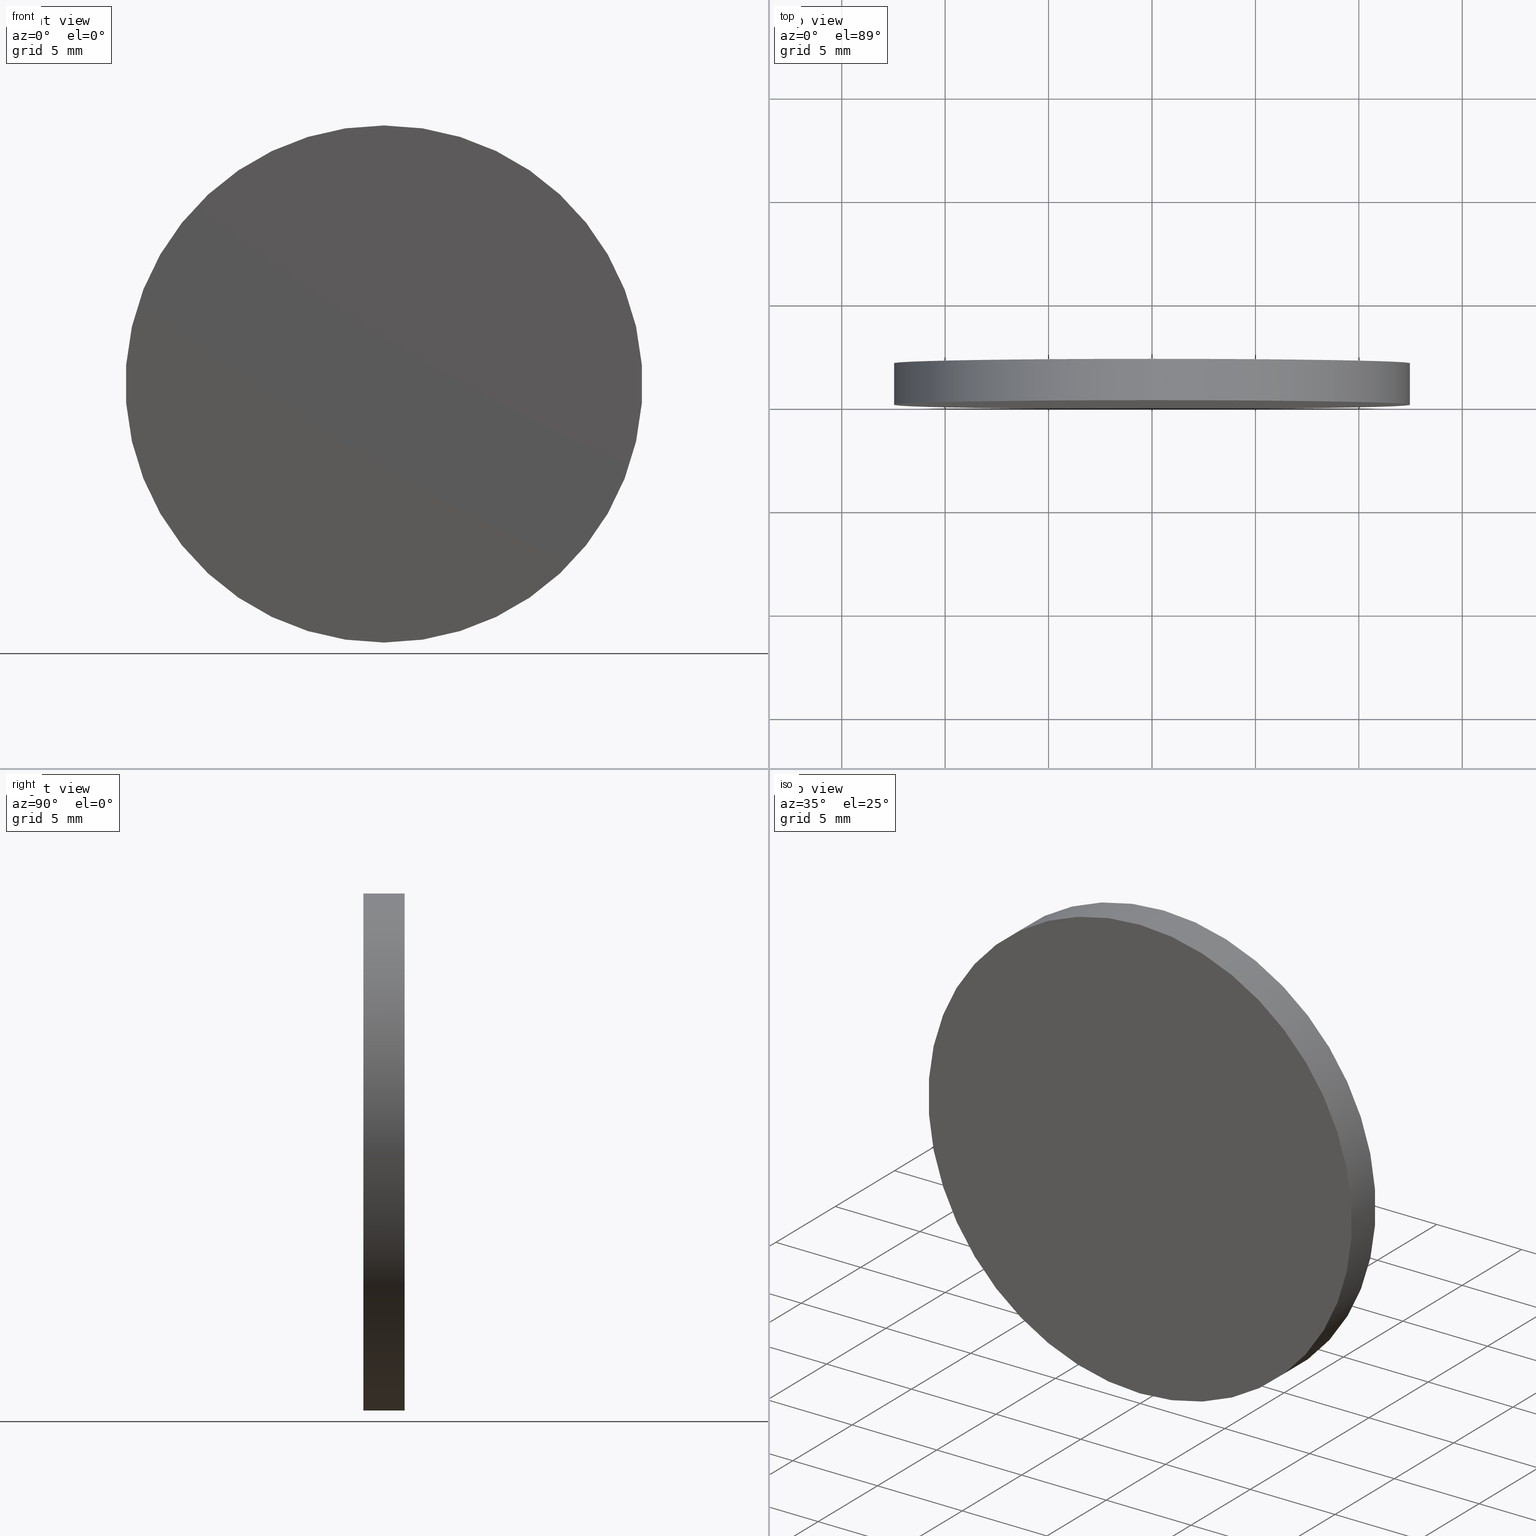
[diagram: canonical four-view strip — front | top / right | iso, engineering-drawing reading convention]
A machine part, canonical four-view strip (front | top / right | iso — engineering-drawing reading convention). The complete STEP part file that produces these views, byte-faithful:
ISO-10303-21;
HEADER;
FILE_DESCRIPTION (( 'STEP AP214' ),
    '1' );
FILE_NAME ('218529.STEP',
    '2019-07-29T06:09:33',
    ( 'user' ),
    ( '΢���й�' ),
    'SwSTEP 2.0',
    'SolidWorks 2016',
    '' );
FILE_SCHEMA (( 'AUTOMOTIVE_DESIGN' ));
ENDSEC;

DATA;
#1 = UNCERTAINTY_MEASURE_WITH_UNIT (LENGTH_MEASURE( 1.000000000000000100E-005 ), #90, 'distance_accuracy_value', 'NONE');
#2 = ORIENTED_EDGE ( 'NONE', *, *, #61, .F. ) ;
#3 = DIRECTION ( 'NONE',  ( -0.0000000000000000000, -1.000000000000000000, -0.0000000000000000000 ) ) ;
#4 = CARTESIAN_POINT ( 'NONE',  ( 0.0000000000000000000, 2.000000000000000000, -12.50000000000000000 ) ) ;
#5 = DIRECTION ( 'NONE',  ( 0.0000000000000000000, 0.0000000000000000000, -1.000000000000000000 ) ) ;
#6 = LINE ( 'NONE', #4, #53 ) ;
#7 = APPLICATION_CONTEXT ( 'automotive_design' ) ;
#8 = DIRECTION ( 'NONE',  ( 0.0000000000000000000, 1.000000000000000000, 0.0000000000000000000 ) ) ;
#9 = CARTESIAN_POINT ( 'NONE',  ( 0.0000000000000000000, 0.0000000000000000000, 0.0000000000000000000 ) ) ;
#10 = UNCERTAINTY_MEASURE_WITH_UNIT (LENGTH_MEASURE( 1.000000000000000100E-005 ), #39, 'distance_accuracy_value', 'NONE');
#11 = ORIENTED_EDGE ( 'NONE', *, *, #78, .T. ) ;
#12 = ORIENTED_EDGE ( 'NONE', *, *, #84, .F. ) ;
#13 = CARTESIAN_POINT ( 'NONE',  ( 0.0000000000000000000, 2.000000000000000000, 0.0000000000000000000 ) ) ;
#14 = DIRECTION ( 'NONE',  ( 0.0000000000000000000, 0.0000000000000000000, 1.000000000000000000 ) ) ;
#15 = APPLICATION_CONTEXT ( 'automotive_design' ) ;
#16 = SURFACE_STYLE_USAGE ( .BOTH. , #68 ) ;
#17 = PRESENTATION_STYLE_ASSIGNMENT (( #16 ) ) ;
#18 = APPLICATION_PROTOCOL_DEFINITION ( 'draft international standard', 'automotive_design', 1998, #7 ) ;
#19 = PRODUCT_DEFINITION_FORMATION_WITH_SPECIFIED_SOURCE ( '�κ�', '', #97, .NOT_KNOWN. ) ;
#20 = EDGE_LOOP ( 'NONE', ( #99, #11, #94, #42 ) ) ;
#21 = MECHANICAL_DESIGN_GEOMETRIC_PRESENTATION_REPRESENTATION (  '', ( #100 ), #77 ) ;
#22 = CLOSED_SHELL ( 'NONE', ( #74, #87, #35, #131 ) ) ;
#23 = LINE ( 'NONE', #34, #31 ) ;
#24 = PLANE ( 'NONE',  #110 ) ;
#25 = CARTESIAN_POINT ( 'NONE',  ( 0.0000000000000000000, 0.0000000000000000000, 0.0000000000000000000 ) ) ;
#26 = CARTESIAN_POINT ( 'NONE',  ( 0.0000000000000000000, 2.000000000000000000, 0.0000000000000000000 ) ) ;
#27 = DIRECTION ( 'NONE',  ( 1.000000000000000000, 0.0000000000000000000, 0.0000000000000000000 ) ) ;
#28 =( NAMED_UNIT ( * ) SI_UNIT ( $, .STERADIAN. ) SOLID_ANGLE_UNIT ( ) );
#29 = EDGE_LOOP ( 'NONE', ( #12, #127 ) ) ;
#30 = VERTEX_POINT ( 'NONE', #32 ) ;
#31 = VECTOR ( 'NONE', #36, 1000.000000000000000 ) ;
#32 = CARTESIAN_POINT ( 'NONE',  ( 0.0000000000000000000, 2.000000000000000000, -12.50000000000000000 ) ) ;
#33 = CIRCLE ( 'NONE', #106, 12.50000000000000000 ) ;
#34 = CARTESIAN_POINT ( 'NONE',  ( 1.530808498934191500E-015, 2.000000000000000000, 12.50000000000000000 ) ) ;
#35 = ADVANCED_FACE ( 'NONE', ( #59 ), #24, .T. ) ;
#36 = DIRECTION ( 'NONE',  ( -0.0000000000000000000, -1.000000000000000000, -0.0000000000000000000 ) ) ;
#37 = PRODUCT_DEFINITION ( 'δ֪', '', #19, #115 ) ;
#38 = COLOUR_RGB ( '',1.000000000000000000, 1.000000000000000000, 1.000000000000000000 ) ;
#39 =( LENGTH_UNIT ( ) NAMED_UNIT ( * ) SI_UNIT ( .MILLI., .METRE. ) );
#40 = EDGE_LOOP ( 'NONE', ( #95, #2, #125, #81 ) ) ;
#41 = CYLINDRICAL_SURFACE ( 'NONE', #140, 12.50000000000000000 ) ;
#42 = ORIENTED_EDGE ( 'NONE', *, *, #96, .F. ) ;
#43 = SURFACE_STYLE_FILL_AREA ( #122 ) ;
#44 = CARTESIAN_POINT ( 'NONE',  ( 0.0000000000000000000, 2.000000000000000000, 0.0000000000000000000 ) ) ;
#45 = DIRECTION ( 'NONE',  ( 0.0000000000000000000, -0.0000000000000000000, 1.000000000000000000 ) ) ;
#46 = PRODUCT_DEFINITION_SHAPE ( 'NONE', 'NONE',  #37 ) ;
#47 =( NAMED_UNIT ( * ) PLANE_ANGLE_UNIT ( ) SI_UNIT ( $, .RADIAN. ) );
#48 = AXIS2_PLACEMENT_3D ( 'NONE', #124, #102, #27 ) ;
#49 = VERTEX_POINT ( 'NONE', #50 ) ;
#50 = CARTESIAN_POINT ( 'NONE',  ( 0.0000000000000000000, 0.0000000000000000000, -12.50000000000000000 ) ) ;
#51 = CARTESIAN_POINT ( 'NONE',  ( 1.530808498934191500E-015, 2.000000000000000000, 12.50000000000000000 ) ) ;
#52 = SURFACE_STYLE_USAGE ( .BOTH. , #134 ) ;
#53 = VECTOR ( 'NONE', #75, 1000.000000000000000 ) ;
#54 = DIRECTION ( 'NONE',  ( 0.0000000000000000000, -0.0000000000000000000, 1.000000000000000000 ) ) ;
#55 =( NAMED_UNIT ( * ) PLANE_ANGLE_UNIT ( ) SI_UNIT ( $, .RADIAN. ) );
#56 = CYLINDRICAL_SURFACE ( 'NONE', #82, 12.50000000000000000 ) ;
#57 = SHAPE_DEFINITION_REPRESENTATION ( #46, #114 ) ;
#58 = AXIS2_PLACEMENT_3D ( 'NONE', #26, #88, #14 ) ;
#59 = FACE_OUTER_BOUND ( 'NONE', #120, .T. ) ;
#60 = CIRCLE ( 'NONE', #129, 12.50000000000000000 ) ;
#61 = EDGE_CURVE ( 'NONE', #30, #105, #33, .T. ) ;
#62 = ORIENTED_EDGE ( 'NONE', *, *, #85, .T. ) ;
#63 = PRODUCT_RELATED_PRODUCT_CATEGORY ( 'part', '', ( #97 ) ) ;
#64 = PLANE ( 'NONE',  #121 ) ;
#65 = DIRECTION ( 'NONE',  ( 0.0000000000000000000, 1.000000000000000000, 0.0000000000000000000 ) ) ;
#66 = FILL_AREA_STYLE ('',( #132 ) ) ;
#67 = CARTESIAN_POINT ( 'NONE',  ( 0.0000000000000000000, 0.0000000000000000000, 0.0000000000000000000 ) ) ;
#68 = SURFACE_SIDE_STYLE ('',( #43 ) ) ;
#69 = VERTEX_POINT ( 'NONE', #72 ) ;
#70 = FACE_OUTER_BOUND ( 'NONE', #40, .T. ) ;
#71 = UNCERTAINTY_MEASURE_WITH_UNIT (LENGTH_MEASURE( 1.000000000000000100E-005 ), #123, 'distance_accuracy_value', 'NONE');
#72 = CARTESIAN_POINT ( 'NONE',  ( 1.530808498934191500E-015, 0.0000000000000000000, 12.50000000000000000 ) ) ;
#73 = DIRECTION ( 'NONE',  ( -0.0000000000000000000, -1.000000000000000000, -0.0000000000000000000 ) ) ;
#74 = ADVANCED_FACE ( 'NONE', ( #113 ), #41, .T. ) ;
#75 = DIRECTION ( 'NONE',  ( -0.0000000000000000000, -1.000000000000000000, -0.0000000000000000000 ) ) ;
#76 = APPLICATION_PROTOCOL_DEFINITION ( 'draft international standard', 'automotive_design', 1998, #15 ) ;
#77 =( GEOMETRIC_REPRESENTATION_CONTEXT ( 3 ) GLOBAL_UNCERTAINTY_ASSIGNED_CONTEXT ( ( #71 ) ) GLOBAL_UNIT_ASSIGNED_CONTEXT ( ( #123, #47, #112 ) ) REPRESENTATION_CONTEXT ( 'NONE', 'WORKASPACE' ) );
#78 = EDGE_CURVE ( 'NONE', #105, #69, #23, .T. ) ;
#79 = EDGE_CURVE ( 'NONE', #69, #49, #60, .T. ) ;
#80 = MANIFOLD_SOLID_BREP ( '͹̨-����1', #22 ) ;
#81 = ORIENTED_EDGE ( 'NONE', *, *, #84, .T. ) ;
#82 = AXIS2_PLACEMENT_3D ( 'NONE', #101, #73, #5 ) ;
#83 = CIRCLE ( 'NONE', #58, 12.50000000000000000 ) ;
#84 = EDGE_CURVE ( 'NONE', #49, #69, #116, .T. ) ;
#85 = EDGE_CURVE ( 'NONE', #105, #30, #83, .T. ) ;
#86 = DIRECTION ( 'NONE',  ( 0.0000000000000000000, 0.0000000000000000000, 1.000000000000000000 ) ) ;
#87 = ADVANCED_FACE ( 'NONE', ( #70 ), #56, .T. ) ;
#88 = DIRECTION ( 'NONE',  ( 0.0000000000000000000, 1.000000000000000000, 0.0000000000000000000 ) ) ;
#89 = PRODUCT_CONTEXT ( 'NONE', #7, 'mechanical' ) ;
#90 =( LENGTH_UNIT ( ) NAMED_UNIT ( * ) SI_UNIT ( .MILLI., .METRE. ) );
#91 = DIRECTION ( 'NONE',  ( 0.0000000000000000000, 0.0000000000000000000, 1.000000000000000000 ) ) ;
#92 = PRESENTATION_STYLE_ASSIGNMENT (( #52 ) ) ;
#93 = PRESENTATION_LAYER_ASSIGNMENT (  '', '', ( #100 ) ) ;
#94 = ORIENTED_EDGE ( 'NONE', *, *, #79, .T. ) ;
#95 = ORIENTED_EDGE ( 'NONE', *, *, #78, .F. ) ;
#96 = EDGE_CURVE ( 'NONE', #30, #49, #6, .T. ) ;
#97 = PRODUCT ( '218529', '218529', '', ( #89 ) ) ;
#98 = COLOUR_RGB ( '',1.000000000000000000, 1.000000000000000000, 1.000000000000000000 ) ;
#99 = ORIENTED_EDGE ( 'NONE', *, *, #85, .F. ) ;
#100 = STYLED_ITEM ( 'NONE', ( #92 ), #114 ) ;
#101 = CARTESIAN_POINT ( 'NONE',  ( 0.0000000000000000000, 2.000000000000000000, 0.0000000000000000000 ) ) ;
#102 = DIRECTION ( 'NONE',  ( 0.0000000000000000000, 0.0000000000000000000, 1.000000000000000000 ) ) ;
#103 =( NAMED_UNIT ( * ) SI_UNIT ( $, .STERADIAN. ) SOLID_ANGLE_UNIT ( ) );
#104 =( NAMED_UNIT ( * ) PLANE_ANGLE_UNIT ( ) SI_UNIT ( $, .RADIAN. ) );
#105 = VERTEX_POINT ( 'NONE', #51 ) ;
#106 = AXIS2_PLACEMENT_3D ( 'NONE', #44, #109, #86 ) ;
#107 = AXIS2_PLACEMENT_3D ( 'NONE', #25, #65, #133 ) ;
#108 = PRESENTATION_LAYER_ASSIGNMENT (  '', '', ( #126 ) ) ;
#109 = DIRECTION ( 'NONE',  ( 0.0000000000000000000, 1.000000000000000000, 0.0000000000000000000 ) ) ;
#110 = AXIS2_PLACEMENT_3D ( 'NONE', #13, #130, #45 ) ;
#111 = CARTESIAN_POINT ( 'NONE',  ( 0.0000000000000000000, 2.000000000000000000, 0.0000000000000000000 ) ) ;
#112 =( NAMED_UNIT ( * ) SI_UNIT ( $, .STERADIAN. ) SOLID_ANGLE_UNIT ( ) );
#113 = FACE_OUTER_BOUND ( 'NONE', #20, .T. ) ;
#114 = ADVANCED_BREP_SHAPE_REPRESENTATION ( '218529', ( #80, #48 ), #137 ) ;
#115 = PRODUCT_DEFINITION_CONTEXT ( 'detailed design', #15, 'design' ) ;
#116 = CIRCLE ( 'NONE', #107, 12.50000000000000000 ) ;
#117 = FACE_OUTER_BOUND ( 'NONE', #29, .T. ) ;
#118 = FILL_AREA_STYLE_COLOUR ( '', #98 ) ;
#119 = SURFACE_STYLE_FILL_AREA ( #66 ) ;
#120 = EDGE_LOOP ( 'NONE', ( #136, #62 ) ) ;
#121 = AXIS2_PLACEMENT_3D ( 'NONE', #9, #135, #54 ) ;
#122 = FILL_AREA_STYLE ('',( #118 ) ) ;
#123 =( LENGTH_UNIT ( ) NAMED_UNIT ( * ) SI_UNIT ( .MILLI., .METRE. ) );
#124 = CARTESIAN_POINT ( 'NONE',  ( 0.0000000000000000000, 0.0000000000000000000, 0.0000000000000000000 ) ) ;
#125 = ORIENTED_EDGE ( 'NONE', *, *, #96, .T. ) ;
#126 = STYLED_ITEM ( 'NONE', ( #17 ), #80 ) ;
#127 = ORIENTED_EDGE ( 'NONE', *, *, #79, .F. ) ;
#128 = DIRECTION ( 'NONE',  ( 0.0000000000000000000, 0.0000000000000000000, -1.000000000000000000 ) ) ;
#129 = AXIS2_PLACEMENT_3D ( 'NONE', #67, #8, #91 ) ;
#130 = DIRECTION ( 'NONE',  ( 0.0000000000000000000, 1.000000000000000000, 0.0000000000000000000 ) ) ;
#131 = ADVANCED_FACE ( 'NONE', ( #117 ), #64, .F. ) ;
#132 = FILL_AREA_STYLE_COLOUR ( '', #38 ) ;
#133 = DIRECTION ( 'NONE',  ( 0.0000000000000000000, 0.0000000000000000000, 1.000000000000000000 ) ) ;
#134 = SURFACE_SIDE_STYLE ('',( #119 ) ) ;
#135 = DIRECTION ( 'NONE',  ( 0.0000000000000000000, 1.000000000000000000, 0.0000000000000000000 ) ) ;
#136 = ORIENTED_EDGE ( 'NONE', *, *, #61, .T. ) ;
#137 =( GEOMETRIC_REPRESENTATION_CONTEXT ( 3 ) GLOBAL_UNCERTAINTY_ASSIGNED_CONTEXT ( ( #10 ) ) GLOBAL_UNIT_ASSIGNED_CONTEXT ( ( #39, #104, #28 ) ) REPRESENTATION_CONTEXT ( 'NONE', 'WORKASPACE' ) );
#138 = MECHANICAL_DESIGN_GEOMETRIC_PRESENTATION_REPRESENTATION (  '', ( #126 ), #139 ) ;
#139 =( GEOMETRIC_REPRESENTATION_CONTEXT ( 3 ) GLOBAL_UNCERTAINTY_ASSIGNED_CONTEXT ( ( #1 ) ) GLOBAL_UNIT_ASSIGNED_CONTEXT ( ( #90, #55, #103 ) ) REPRESENTATION_CONTEXT ( 'NONE', 'WORKASPACE' ) );
#140 = AXIS2_PLACEMENT_3D ( 'NONE', #111, #3, #128 ) ;
ENDSEC;
END-ISO-10303-21;
